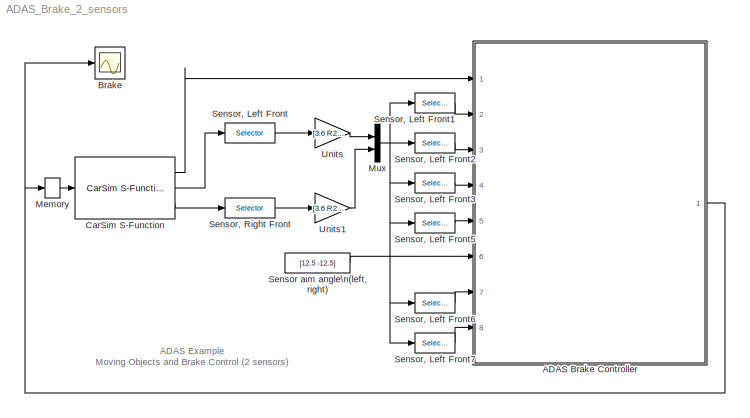
MODEL ADAS_Brake_2_sensors
KIND model
CONFIG InitFcn = R2D = 180/pi;
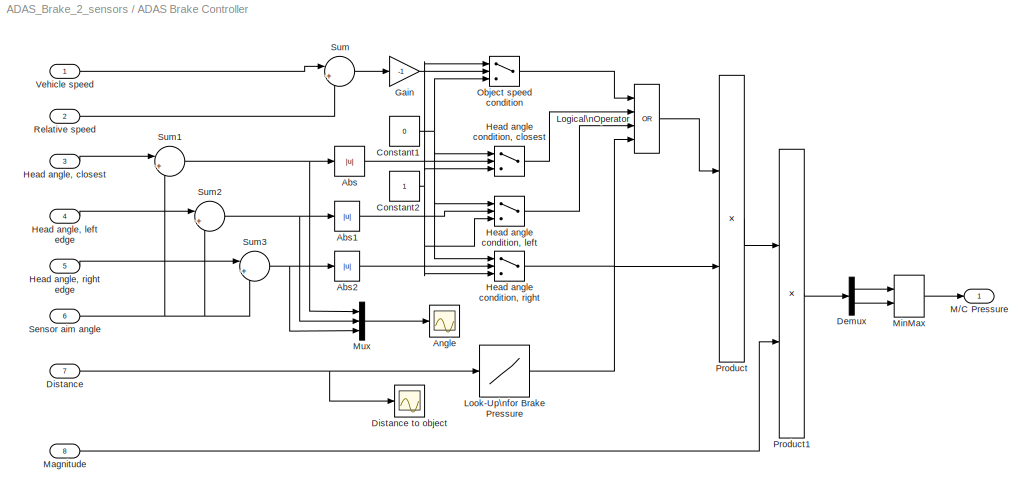
BLOCK [SubSystem] ADAS Brake Controller
  MaskHideContents = off
  MinAlgLoopOccurrences = off
  Ports = [8, 1]
  RTWSystemCode = Auto
  TreatAsAtomicUnit = off
BLOCK [Abs] ADAS Brake Controller/Abs
BLOCK [Abs] ADAS Brake Controller/Abs1
BLOCK [Abs] ADAS Brake Controller/Abs2
BLOCK [Scope] ADAS Brake Controller/Angle
  DataFormat = StructureWithTime
  Floating = off
  LimitDataPoints = off
  NumInputPorts = 1
  Ports = [1]
  SampleTime = 0
  SaveName = ScopeData3
  TimeRange = 8
  YMax = 100
  YMin = 0
BLOCK [Constant] ADAS Brake Controller/Constant1
  Value = 0
BLOCK [Constant] ADAS Brake Controller/Constant2
BLOCK [Demux] ADAS Brake Controller/Demux
  Outputs = 2
  Ports = [1, 2]
BLOCK [Inport] ADAS Brake Controller/Distance
  IconDisplay = Port number
  Port = 7
BLOCK [Scope] ADAS Brake Controller/Distance to object
  DataFormat = StructureWithTime
  Floating = off
  LimitDataPoints = off
  NumInputPorts = 1
  Ports = [1]
  SampleTime = 0
  SaveName = ScopeData4
  TimeRange = 8
  YMax = 150
  YMin = 0
BLOCK [Gain] ADAS Brake Controller/Gain
  Gain = -1
BLOCK [Switch] ADAS Brake Controller/Head angle condition, closest
  Criteria = u2 > Threshold
  InputSameDT = off
  Threshold = 10
BLOCK [Switch] ADAS Brake Controller/Head angle condition, left
  Criteria = u2 > Threshold
  InputSameDT = off
  Threshold = 10
BLOCK [Switch] ADAS Brake Controller/Head angle condition, right
  Criteria = u2 > Threshold
  InputSameDT = off
  Threshold = 10
BLOCK [Inport] ADAS Brake Controller/Head angle, closest
  IconDisplay = Port number
  Port = 3
BLOCK [Inport] ADAS Brake Controller/Head angle, left edge 
  IconDisplay = Port number
  Port = 4
BLOCK [Inport] ADAS Brake Controller/Head angle, right edge
  IconDisplay = Port number
  Port = 5
BLOCK [Logic] ADAS Brake Controller/Logical\nOperator
  AllPortsSameDT = off
  Inputs = 4
  Operator = OR
  Ports = [4, 1]
BLOCK [Lookup] ADAS Brake Controller/Look-Up\nfor Brake Pressure
  InputValues = [0,20,30,40,60,80,100,120]
  OutputValues = [15,15,10,10,0,0,0,0]
BLOCK [Outport] ADAS Brake Controller/M//C Pressure
  BusOutputAsStruct = off
  IconDisplay = Port number
BLOCK [Inport] ADAS Brake Controller/Magnitude
  IconDisplay = Port number
  Port = 8
BLOCK [MinMax] ADAS Brake Controller/MinMax
  Function = max
  Inputs = 2
  Ports = [2, 1]
BLOCK [Mux] ADAS Brake Controller/Mux
  DisplayOption = bar
  Inputs = 3
  Ports = [3, 1]
BLOCK [Switch] ADAS Brake Controller/Object speed condition
  Criteria = u2 > Threshold
  InputSameDT = off
  Threshold = 5
BLOCK [Product] ADAS Brake Controller/Product
  InputSameDT = off
  Ports = [2, 1]
  RndMeth = Floor
BLOCK [Product] ADAS Brake Controller/Product1
  InputSameDT = off
  Ports = [2, 1]
  RndMeth = Floor
BLOCK [Inport] ADAS Brake Controller/Relative speed
  IconDisplay = Port number
  Port = 2
BLOCK [Inport] ADAS Brake Controller/Sensor aim angle
  IconDisplay = Port number
  Port = 6
BLOCK [Sum] ADAS Brake Controller/Sum
  IconShape = round
  InputSameDT = off
  Inputs = |++
  OutDataTypeMode = Inherit via internal rule
  Ports = [2, 1]
BLOCK [Sum] ADAS Brake Controller/Sum1
  IconShape = round
  InputSameDT = off
  Inputs = |++
  OutDataTypeMode = Inherit via internal rule
  Ports = [2, 1]
BLOCK [Sum] ADAS Brake Controller/Sum2
  IconShape = round
  InputSameDT = off
  Inputs = |++
  OutDataTypeMode = Inherit via internal rule
  Ports = [2, 1]
BLOCK [Sum] ADAS Brake Controller/Sum3
  IconShape = round
  InputSameDT = off
  Inputs = |++
  OutDataTypeMode = Inherit via internal rule
  Ports = [2, 1]
BLOCK [Inport] ADAS Brake Controller/Vehicle speed
  IconDisplay = Port number
BLOCK [Scope] Brake
  DataFormat = StructureWithTime
  Floating = off
  LimitDataPoints = off
  NumInputPorts = 1
  Ports = [1]
  SampleTime = 0
  TimeRange = 8
  YMax = 15
  YMin = 0
BLOCK [Reference] CarSim S-Function  REF=Solver_SF/CarSim S-Function
  AttributesFormatString = Vehicle Code: %<VehicleCode>
  Ports = [1, 3]
  Priority = 1
  SIMFILE = simfile.sim
  SourceBlock = Solver_SF/CarSim S-Function
  SourceType = Vehicle math model library
  VehicleCode = i_i
BLOCK [Memory] Memory
BLOCK [Mux] Mux
  DisplayOption = bar
  Inputs = 2
  Ports = [2, 1]
BLOCK [Constant] Sensor aim angle\n(left, right)
  Value = [12.5 -12.5]
BLOCK [Selector] Sensor, Left Front
  Elements = [3 6 7 8 2 4]
  OutputPortSize = [(-2)]
  Ports = [1, 1]
  Rows = [3 6 7 8 2 4]
BLOCK [Selector] Sensor, Left Front1
  Elements = [1 7]
  OutputPortSize = [(-2)]
  Ports = [1, 1]
  Rows = [1 7]
BLOCK [Selector] Sensor, Left Front2
  Elements = [2 8]
  OutputPortSize = [(-2)]
  Ports = [1, 1]
  Rows = [2 8]
BLOCK [Selector] Sensor, Left Front3
  Elements = [3 9]
  OutputPortSize = [(-2)]
  Ports = [1, 1]
  Rows = [3 9]
BLOCK [Selector] Sensor, Left Front5
  Elements = [4 10]
  OutputPortSize = [(-2)]
  Ports = [1, 1]
  Rows = [4 10]
BLOCK [Selector] Sensor, Left Front6
  Elements = [5 11]
  OutputPortSize = [(-2)]
  Ports = [1, 1]
  Rows = [5 11]
BLOCK [Selector] Sensor, Left Front7
  Elements = [6 12]
  OutputPortSize = [(-2)]
  Ports = [1, 1]
  Rows = [6 12]
BLOCK [Selector] Sensor, Right Front
  Elements = [3 6 7 8 2 4]
  OutputPortSize = [(-2)]
  Ports = [1, 1]
  Rows = [3 6 7 8 2 4]
BLOCK [Gain] Units
  Gain = [3.6 R2D R2D  R2D 1 1]
BLOCK [Gain] Units1
  Gain = [3.6 R2D R2D  R2D 1 1]
ANNOTATION (root): ADAS Example\nMoving Objects and Brake Control (2 sensors)
LINE ADAS Brake Controller/Abs1:1 -> ADAS Brake Controller/Head angle condition, left:2
LINE ADAS Brake Controller/Abs2:1 -> ADAS Brake Controller/Head angle condition, right:2
LINE ADAS Brake Controller/Abs:1 -> ADAS Brake Controller/Head angle condition, closest:2
NET ADAS Brake Controller/Constant1:1 -> ADAS Brake Controller/Head angle condition, closest:1, ADAS Brake Controller/Head angle condition, left:1, ADAS Brake Controller/Head angle condition, right:1, ADAS Brake Controller/Object speed condition:3
NET ADAS Brake Controller/Constant2:1 -> ADAS Brake Controller/Head angle condition, closest:3, ADAS Brake Controller/Head angle condition, left:3, ADAS Brake Controller/Head angle condition, right:3, ADAS Brake Controller/Object speed condition:1
LINE ADAS Brake Controller/Demux:1 -> ADAS Brake Controller/MinMax:1
LINE ADAS Brake Controller/Demux:2 -> ADAS Brake Controller/MinMax:2
NET ADAS Brake Controller/Distance:1 -> ADAS Brake Controller/Distance to object:1, ADAS Brake Controller/Look-Up\nfor Brake Pressure:1
LINE ADAS Brake Controller/Gain:1 -> ADAS Brake Controller/Object speed condition:2
LINE ADAS Brake Controller/Head angle condition, closest:1 -> ADAS Brake Controller/Logical\nOperator:2
LINE ADAS Brake Controller/Head angle condition, left:1 -> ADAS Brake Controller/Logical\nOperator:3
LINE ADAS Brake Controller/Head angle condition, right:1 -> ADAS Brake Controller/Logical\nOperator:4
LINE ADAS Brake Controller/Head angle, closest:1 -> ADAS Brake Controller/Sum1:1
LINE ADAS Brake Controller/Head angle, left edge :1 -> ADAS Brake Controller/Sum2:1
LINE ADAS Brake Controller/Head angle, right edge:1 -> ADAS Brake Controller/Sum3:1
LINE ADAS Brake Controller/Logical\nOperator:1 -> ADAS Brake Controller/Product:1
LINE ADAS Brake Controller/Look-Up\nfor Brake Pressure:1 -> ADAS Brake Controller/Product:2
LINE ADAS Brake Controller/Magnitude:1 -> ADAS Brake Controller/Product1:2
LINE ADAS Brake Controller/MinMax:1 -> ADAS Brake Controller/M//C Pressure:1
LINE ADAS Brake Controller/Mux:1 -> ADAS Brake Controller/Angle:1
LINE ADAS Brake Controller/Object speed condition:1 -> ADAS Brake Controller/Logical\nOperator:1
LINE ADAS Brake Controller/Product1:1 -> ADAS Brake Controller/Demux:1
LINE ADAS Brake Controller/Product:1 -> ADAS Brake Controller/Product1:1
LINE ADAS Brake Controller/Relative speed:1 -> ADAS Brake Controller/Sum:2
NET ADAS Brake Controller/Sensor aim angle:1 -> ADAS Brake Controller/Sum1:2, ADAS Brake Controller/Sum2:2, ADAS Brake Controller/Sum3:2
NET ADAS Brake Controller/Sum1:1 -> ADAS Brake Controller/Abs:1, ADAS Brake Controller/Mux:1
NET ADAS Brake Controller/Sum2:1 -> ADAS Brake Controller/Abs1:1, ADAS Brake Controller/Mux:2
NET ADAS Brake Controller/Sum3:1 -> ADAS Brake Controller/Abs2:1, ADAS Brake Controller/Mux:3
LINE ADAS Brake Controller/Sum:1 -> ADAS Brake Controller/Gain:1
LINE ADAS Brake Controller/Vehicle speed:1 -> ADAS Brake Controller/Sum:1
NET ADAS Brake Controller:1 -> Brake:1, Memory:1
LINE CarSim S-Function:1 -> ADAS Brake Controller:1
LINE CarSim S-Function:2 -> Sensor, Left Front:1
LINE CarSim S-Function:3 -> Sensor, Right Front:1
LINE Memory:1 -> CarSim S-Function:1
NET Mux:1 -> Sensor, Left Front1:1, Sensor, Left Front2:1, Sensor, Left Front3:1, Sensor, Left Front5:1, Sensor, Left Front6:1, Sensor, Left Front7:1
LINE Sensor aim angle\n(left, right):1 -> ADAS Brake Controller:6
LINE Sensor, Left Front1:1 -> ADAS Brake Controller:2
LINE Sensor, Left Front2:1 -> ADAS Brake Controller:3
LINE Sensor, Left Front3:1 -> ADAS Brake Controller:4
LINE Sensor, Left Front5:1 -> ADAS Brake Controller:5
LINE Sensor, Left Front6:1 -> ADAS Brake Controller:7
LINE Sensor, Left Front7:1 -> ADAS Brake Controller:8
LINE Sensor, Left Front:1 -> Units:1
LINE Sensor, Right Front:1 -> Units1:1
LINE Units1:1 -> Mux:2
LINE Units:1 -> Mux:1
note: NET lines group one-source signal fan-out (src -> all destinations, sorted); 1:1 wires keep LINE
